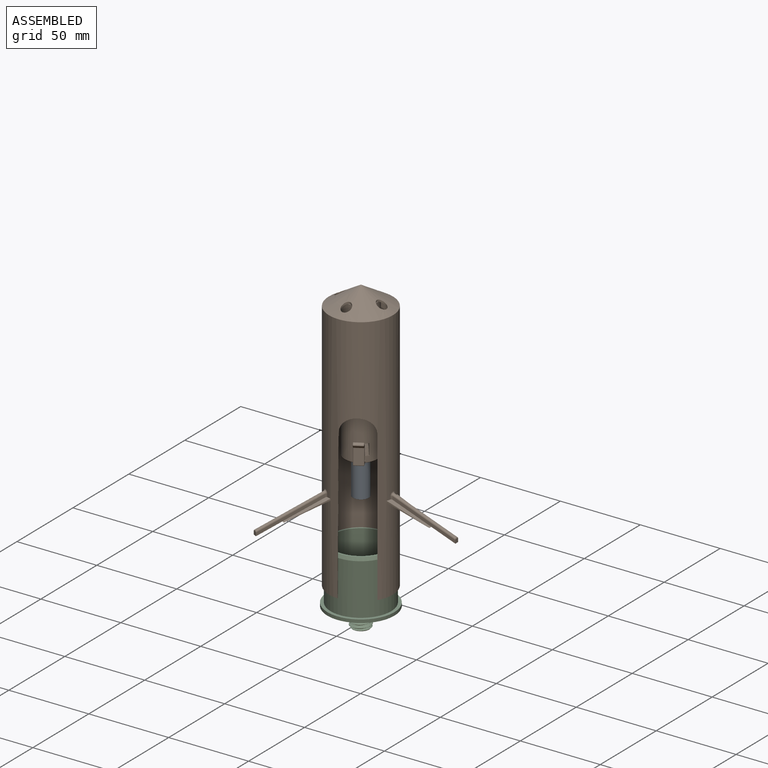
[diagram: assembled view]
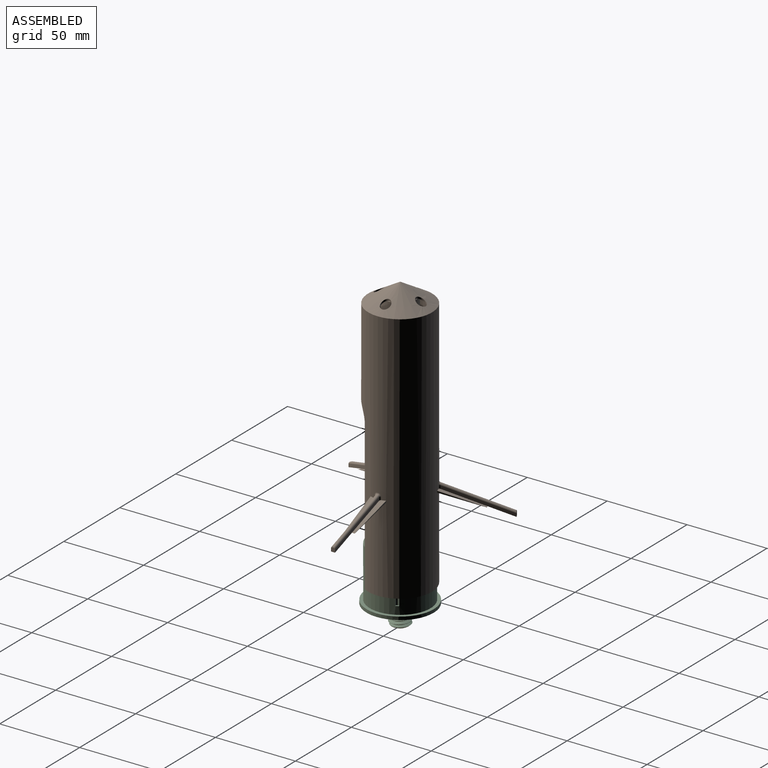
[diagram: assembled view, second angle]
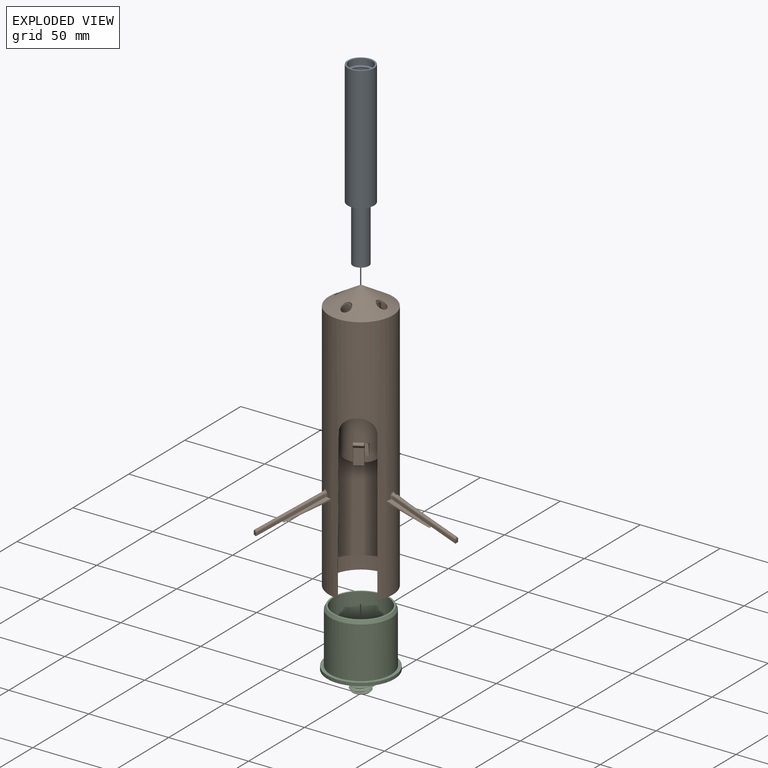
[diagram: exploded view]
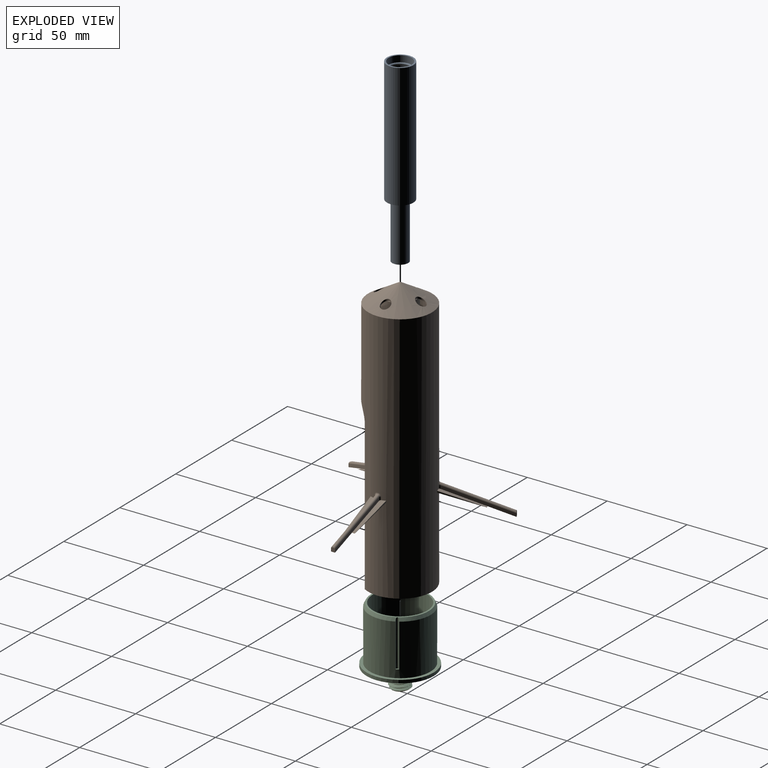
[diagram: exploded view, second angle]
ASSEMBLY  parts=3 mates=3
PART A: 35 faces, bbox 16.8x16.8x112.8 mm
  f0: plane 10x1.3mm, normal (-0.87,0.5,0), area 7.5mm2, adj f2,f20,f34
  f1: plane 0.87x0.5mm, normal (0,0,1), area 0mm2, adj f20,f34
  f2: plane 8x7.97mm, normal (0,0,1), area 45.7mm2, adj f0,f20,f25,f26,f28,f29,f30,f31
  f3: plane 10x10mm, normal (0,0,-1), area 78.5mm2, adj f4
  f4: cylinder r=5mm len=31.6mm, axis (0,0,1), area 992.7mm2, adj f3,f5
  f5: plane 14.5x14.5mm, normal (0,0,-1), area 84.8mm2, adj f4,f6,f21,f22,f23,f24
  f6: cylinder r=7.25mm len=58.05mm, axis (0,0,1), area 2644.4mm2, adj f5,f7
  f7: torus R=7.25mm, axis (0,0,1), area 100.3mm2, adj f6,f8
  f8: cylinder r=7.25mm len=14.5mm, axis (0,0,1), area 125.3mm2, adj f7,f9
  f9: torus R=7.25mm, axis (0,0,1), area 100.3mm2, adj f8,f10
  f10: cylinder r=7.25mm len=14.5mm, axis (0,0,1), area 125.3mm2, adj f9,f11
  f11: torus R=7.25mm, axis (0,0,1), area 100.3mm2, adj f10,f12
  f12: cylinder r=7.25mm len=14.5mm, axis (0,0,1), area 125.3mm2, adj f11,f13
  f13: torus R=7.25mm, axis (0,0,1), area 100.3mm2, adj f12,f14
  f14: cylinder r=7.25mm len=14.5mm, axis (0,0,1), area 182.2mm2, adj f13,f15
  f15: plane 16.5x16.5mm, normal (0,0,-1), area 48.7mm2, adj f14,f16
  f16: cylinder r=8.25mm len=77.8mm, axis (0,0,1), area 4032.9mm2, adj f15,f17
  f17: plane 16.5x16.5mm, normal (0,0,1), area 133.5mm2, adj f16,f18,f21,f22,f23,f24
  f18: cylinder r=5mm len=35mm, axis (0,0,1), area 1099.6mm2, adj f17,f19
  f19: plane 10x10mm, normal (0,0,1), area 28.3mm2, adj f18,f20
  f20: cylinder r=4mm len=67.85mm, axis (0,0,1), area 1675.2mm2, adj f0,f1,f2,f19,f25,f26,f27,f29
  f21: cylinder r=0.38mm len=1.5mm, axis (0,0,1), area 3.5mm2, adj f5,f17
  f22: cylinder r=0.38mm len=1.5mm, axis (0,0,1), area 3.5mm2, adj f5,f17
  f23: cylinder r=0.38mm len=1.5mm, axis (0,0,1), area 3.5mm2, adj f5,f17
  f24: cylinder r=0.38mm len=1.5mm, axis (0,0,1), area 3.5mm2, adj f5,f17
  f25: plane 10x1.5mm, normal (0,1,0), area 7.5mm2, adj f2,f20,f28
  f26: plane 10x1.5mm, normal (0,-1,0), area 7.5mm2, adj f2,f20,f28
  f27: plane 1x0.03mm, normal (0,0,1), area 0mm2, adj f20,f28
  f28: plane 10x1.5mm, normal (0.99,0,0.15), area 10.1mm2, adj f2,f25,f26,f27
  f29: plane 10x1.3mm, normal (0.87,-0.5,0), area 7.5mm2, adj f2,f20,f34
  f30: plane 10x1.3mm, normal (-0.87,-0.5,0), area 7.5mm2, adj f2,f20,f33
  f31: plane 10x1.3mm, normal (0.87,0.5,0), area 7.5mm2, adj f2,f20,f33
  f32: plane 0.87x0.5mm, normal (0,0,1), area 0mm2, adj f20,f33
  f33: plane 10x1.8mm, normal (-0.49,0.86,0.15), area 10.1mm2, adj f2,f30,f31,f32
  f34: plane 10x1.8mm, normal (-0.49,-0.86,0.15), area 10.1mm2, adj f0,f1,f2,f29
PART B: 151 faces, bbox 91.5x105.4x170.1 mm
  f0: cylinder r=10.25mm len=88.47mm, axis (0,0,-1), area 5575mm2, adj f3,f31,f32,f33,f38,f39,f40,f41
  f1: sphere r=1mm, area 6.2mm2, adj f2
  f2: cylinder r=19mm len=157.43mm, axis (0,0,1), area 16629.8mm2, adj f1,f3,f5,f73,f74,f75,f84
  f3: cone r=0mm half-angle=59deg, axis (0,0,-1), area 807.4mm2, adj f0,f2,f77,f79,f81,f83
  f4: cylinder r=20mm len=158mm, axis (0,0,1), area 17635.2mm2, adj f5,f6,f8,f9,f10,f11,f17,f19
  f5: plane 40x39.99mm, normal (0,0,-1), area 100.9mm2, adj f2,f4,f73,f75
  f6: plane 8.3x4.79mm, normal (-0.17,-0.3,0.94), area 4mm2, adj f4,f7
  f7: plane 26x19.51mm, normal (0.15,0.27,-0.95), area 209mm2, adj f6,f8,f9,f10,f11,f12
  f8: plane 23.93x13.71mm, normal (-0.17,-0.3,0.94), area 70.8mm2, adj f4,f7,f10,f14,f134
  f9: plane 21.21x14.34mm, normal (0.83,-0.55,-0.02), area 13.6mm2, adj f4,f7,f11
  f10: plane 23.02x11.21mm, normal (-0.9,0.44,-0.02), area 13.6mm2, adj f4,f7,f8
  f11: plane 22.25x15.89mm, normal (-0.17,-0.3,0.94), area 70.8mm2, adj f4,f7,f9,f15,f127
  f12: plane 14.29x9.7mm, normal (0.17,0.3,-0.94), area 40.1mm2, adj f7,f14,f15,f16
  f13: plane 33.75x19.78mm, normal (-0.17,-0.3,0.94), area 20.6mm2, adj f128,f130,f131,f132
  f14: plane 33.88x19.56mm, normal (-0.87,0.5,0), area 75.7mm2, adj f8,f12,f16,f132,f134
  f15: plane 33.88x19.56mm, normal (0.87,-0.5,0), area 75.7mm2, adj f11,f12,f16,f127,f128
  f16: plane 2.3x2.17mm, normal (-0.5,-0.87,0), area 5.7mm2, adj f12,f14,f15,f128,f130,f132
  f17: plane 8.3x4.79mm, normal (-0.17,0.3,0.94), area 4mm2, adj f4,f18
  f18: plane 26x19.51mm, normal (0.15,-0.27,-0.95), area 209mm2, adj f17,f19,f20,f21,f22,f23
  f19: plane 22.25x15.89mm, normal (-0.17,0.3,0.94), area 70.8mm2, adj f4,f18,f21,f25,f142
  f20: plane 23.02x11.21mm, normal (-0.9,-0.44,-0.02), area 13.6mm2, adj f4,f18,f22
  f21: plane 21.21x14.34mm, normal (0.83,0.55,-0.02), area 13.6mm2, adj f4,f18,f19
  f22: plane 23.93x13.71mm, normal (-0.17,0.3,0.94), area 70.8mm2, adj f4,f18,f20,f26,f135
  f23: plane 14.29x9.7mm, normal (0.17,-0.3,-0.94), area 40.1mm2, adj f18,f25,f26,f27
  f24: plane 33.75x19.78mm, normal (-0.17,0.3,0.94), area 20.6mm2, adj f136,f138,f139,f140
  f25: plane 33.88x19.56mm, normal (0.87,0.5,0), area 75.7mm2, adj f19,f23,f27,f140,f142
  f26: plane 33.88x19.56mm, normal (-0.87,-0.5,0), area 75.7mm2, adj f22,f23,f27,f135,f136
  f27: plane 2.3x2.17mm, normal (-0.5,0.87,0), area 5.7mm2, adj f23,f25,f26,f136,f138,f140
  f28: plane 39.12x16.17mm, normal (0,1,0), area 75.7mm2, adj f30,f66,f70,f143,f144
  f29: plane 39.12x16.17mm, normal (0,-1,0), area 75.7mm2, adj f30,f66,f67,f148,f150
  f30: plane 2.5x2.3mm, normal (1,0,0), area 5.7mm2, adj f28,f29,f66,f144,f146,f148
  f31: plane 1.42x0.96mm, normal (0,0,1), area 0.4mm2, adj f0,f35,f39,f62
  f32: plane 1.5x0.25mm, normal (0,0,1), area 0.4mm2, adj f0,f35,f43,f57
  f33: plane 1.42x0.95mm, normal (0,0,1), area 0.4mm2, adj f0,f35,f46,f52
  f34: cone r=0mm half-angle=59deg, axis (0,0,-1), area 1333.4mm2, adj f4,f77,f79,f81,f83
  f35: cylinder r=8.75mm len=89.87mm, axis (0,0,-1), area 4843.4mm2, adj f31,f32,f33,f36,f37,f38,f39,f40
  f36: plane 22.44x19.5mm, normal (0,0,-1), area 76.2mm2, adj f35,f103,f111,f112,f113,f117,f118
  f37: cone r=0mm half-angle=59deg, axis (0,0,-1), area 280.5mm2, adj f35
  f38: plane 7.01x1.31mm, normal (0.87,0.5,0), area 9.8mm2, adj f0,f35,f40,f41,f60,f61,f64
  f39: plane 7.01x1.31mm, normal (-0.5,-0.87,0), area 9.9mm2, adj f0,f31,f35,f40,f60,f61,f62
  f40: plane 4.5x4.5mm, normal (0,0,-1), area 7.5mm2, adj f0,f35,f38,f39
  f41: plane 1.41x0.94mm, normal (0,0,1), area 0.3mm2, adj f0,f35,f38,f64
  f42: plane 7.01x1.31mm, normal (-0.87,0.5,0), area 9.8mm2, adj f0,f35,f44,f45,f55,f56,f59
  f43: plane 7.01x1.51mm, normal (1,0,0), area 9.9mm2, adj f0,f32,f35,f44,f55,f56,f57
  f44: plane 5.13x2.67mm, normal (0,0,-1), area 7.5mm2, adj f0,f35,f42,f43
  f45: plane 1.41x0.94mm, normal (0,0,1), area 0.3mm2, adj f0,f35,f42,f59
  f46: plane 7.01x1.31mm, normal (-0.5,0.87,0), area 9.9mm2, adj f0,f33,f35,f48,f50,f51,f52
  f47: plane 7.01x1.51mm, normal (0,-1,0), area 9.8mm2, adj f0,f35,f48,f49,f50,f51,f54
  f48: plane 5.13x2.67mm, normal (0,0,-1), area 7.5mm2, adj f0,f35,f46,f47
  f49: plane 1.5x0.22mm, normal (0,0,1), area 0.3mm2, adj f0,f35,f47,f54
  f50: bspline ~6.38x5.08mm, area 31.7mm2, adj f0,f46,f47,f51,f52,f54
  f51: plane 4.69x2.52mm, normal (0.23,0.06,0.97), area 6.8mm2, adj f35,f46,f47,f50,f52,f53,f54
  f52: bspline ~6.29x2.75mm, area 8.8mm2, adj f33,f35,f46,f50,f51,f53
  f53: bspline ~6.02x4.33mm, area 25.5mm2, adj f35,f51,f52,f54
  f54: bspline ~6.29x2.94mm, area 8.7mm2, adj f35,f47,f49,f50,f51,f53
  f55: bspline ~6.36x5.1mm, area 31.7mm2, adj f0,f42,f43,f56,f57,f59
  f56: plane 4.69x2.52mm, normal (-0.06,-0.23,0.97), area 6.8mm2, adj f35,f42,f43,f55,f57,f58,f59
  f57: bspline ~6.29x2.94mm, area 8.8mm2, adj f32,f35,f43,f55,f56,f58
  f58: bspline ~6x4.35mm, area 25.5mm2, adj f35,f56,f57,f59
  f59: bspline ~6.29x2.74mm, area 8.7mm2, adj f35,f42,f45,f55,f56,f58
  f60: bspline ~6.36x4.52mm, area 31.7mm2, adj f0,f38,f39,f61,f62,f64
  f61: plane 4.15x4.15mm, normal (-0.17,0.17,0.97), area 6.8mm2, adj f35,f38,f39,f60,f62,f63,f64
  f62: bspline ~6.29x2.34mm, area 8.8mm2, adj f31,f35,f39,f60,f61,f63
  f63: bspline ~6x3.95mm, area 25.5mm2, adj f35,f61,f62,f64
  f64: bspline ~6.29x2.36mm, area 8.7mm2, adj f35,f38,f41,f60,f61,f63
  f65: plane 38.69x14.08mm, normal (0.34,0,0.94), area 20.6mm2, adj f144,f146,f147,f148
  f66: plane 15.06x5.48mm, normal (-0.34,0,-0.94), area 40.1mm2, adj f28,f29,f30,f72
  f67: plane 25.56x9.33mm, normal (0.34,0,0.94), area 70.8mm2, adj f4,f29,f69,f72,f150
  f68: plane 25.53x9.29mm, normal (0.06,1,-0.02), area 13.6mm2, adj f4,f70,f72
  f69: plane 25.53x9.29mm, normal (0.06,-1,-0.02), area 13.6mm2, adj f4,f67,f72
  f70: plane 25.56x9.33mm, normal (0.34,0,0.94), area 70.8mm2, adj f4,f28,f68,f72,f143
  f71: plane 9.69x0.69mm, normal (0.34,0,0.94), area 4mm2, adj f4,f72
  f72: plane 25.52x9.59mm, normal (-0.31,0,-0.95), area 209mm2, adj f66,f67,f68,f69,f70,f71
  f73: plane 93.02x1.01mm, normal (-0.87,-0.5,0), area 108.3mm2, adj f2,f4,f5,f74
  f74: cylinder r=10mm len=19.24mm, axis (0.5,-0.87,0), area 34.3mm2, adj f2,f4,f73,f75
  f75: plane 93.53x1.18mm, normal (0.87,0.5,-0.01), area 110mm2, adj f2,f4,f5,f74
  f76: cone r=0mm half-angle=59deg, axis (0,0,-1), area 0.4mm2, adj f0,f77
  f77: cylinder r=3mm len=6mm, axis (0,0,1), area 22mm2, adj f3,f34,f76
  f78: cone r=0mm half-angle=59deg, axis (0,0,-1), area 0.4mm2, adj f0,f79
  f79: cylinder r=3mm len=6mm, axis (0,0,1), area 22mm2, adj f3,f34,f78
  f80: cone r=0mm half-angle=59deg, axis (0,0,-1), area 0.4mm2, adj f0,f81
  f81: cylinder r=3mm len=6mm, axis (0,0,1), area 22mm2, adj f3,f34,f80
  f82: cone r=0mm half-angle=59deg, axis (0,0,-1), area 0.4mm2, adj f0,f83
  f83: cylinder r=3mm len=6mm, axis (0,0,1), area 22mm2, adj f3,f34,f82
  f84: sphere r=1mm, area 6.2mm2, adj f2
  f85: plane 12.29x3.75mm, normal (0.87,0.5,0), area 13.5mm2, adj f98,f99,f104,f109,f113,f114,f119,f122
  f86: plane 12.29x3.75mm, normal (-0.87,-0.5,0), area 13.5mm2, adj f96,f97,f102,f106,f110,f111,f116,f120
  f87: plane 4.71x3.15mm, normal (0,0,1), area 2.8mm2, adj f115,f120,f123,f126
  f88: plane 8.74x4.68mm, normal (-0.5,0.86,-0.08), area 43.8mm2, adj f89,f110,f114,f115
  f89: plane 5.56x4.63mm, normal (-0.35,0.6,0.72), area 17.1mm2, adj f88,f100,f106,f109
  f90: plane 4.68x3.1mm, normal (0.36,-0.62,0.7), area 5mm2, adj f93,f96,f99,f100
  f91: plane 5.23x4.06mm, normal (0.35,-0.6,-0.72), area 12.5mm2, adj f92,f93,f97,f98
  f92: plane 9.44x4.66mm, normal (0.5,-0.86,0.07), area 47.3mm2, adj f91,f102,f103,f104
  f93: cylinder r=0.5mm len=4.41mm, axis (-0.87,-0.5,0), area 3.9mm2, adj f90,f91,f94,f95
  f94: sphere r=0.5mm, area 0.4mm2, adj f93,f96,f97
  f95: sphere r=0.5mm, area 0.4mm2, adj f93,f98,f99
  f96: cylinder r=0.5mm len=1.07mm, axis (0.35,-0.6,-0.72), area 0.8mm2, adj f86,f90,f94,f101
  f97: cylinder r=0.5mm len=2.26mm, axis (-0.36,0.62,-0.7), area 2.1mm2, adj f86,f91,f94,f102
  f98: cylinder r=0.5mm len=2.26mm, axis (0.36,-0.62,0.7), area 2.1mm2, adj f85,f91,f95,f104
  f99: cylinder r=0.5mm len=1.16mm, axis (-0.35,0.6,0.72), area 0.8mm2, adj f85,f90,f95,f105
  f100: cylinder r=0.5mm len=4.68mm, axis (-0.87,-0.5,0), area 3.9mm2, adj f89,f90,f101,f105
  f101: sphere r=0.5mm, area 0.4mm2, adj f96,f100,f106
  f102: cylinder r=0.5mm len=9.71mm, axis (0.04,-0.06,-1), area 7.5mm2, adj f86,f92,f97,f107
  f103: cylinder r=0.5mm len=4.58mm, axis (0.87,0.5,0), area 4.1mm2, adj f36,f92,f107,f108
  f104: cylinder r=0.5mm len=9.71mm, axis (-0.04,0.06,1), area 7.5mm2, adj f85,f92,f98,f108
  f105: sphere r=0.5mm, area 0.4mm2, adj f99,f100,f109
  f106: cylinder r=0.5mm len=2.73mm, axis (0.36,-0.62,0.7), area 2.6mm2, adj f86,f89,f101,f110
  f107: sphere r=0.5mm, area 0.4mm2, adj f102,f103,f111
  f108: sphere r=0.5mm, area 0.4mm2, adj f103,f104,f113
  f109: cylinder r=0.5mm len=2.73mm, axis (-0.36,0.62,-0.7), area 2.6mm2, adj f85,f89,f105,f114
  f110: cylinder r=0.5mm len=8.78mm, axis (-0.04,0.07,1), area 6.8mm2, adj f86,f88,f106,f116
  f111: cylinder r=0.5mm len=2.89mm, axis (0.5,-0.87,0), area 2.4mm2, adj f36,f86,f107,f117
  f112: torus R=9.75mm, axis (0,0,1), area 44.4mm2, adj f0,f36,f117,f118
  f113: cylinder r=0.5mm len=2.89mm, axis (-0.5,0.87,0), area 2.4mm2, adj f36,f85,f108,f118
  f114: cylinder r=0.5mm len=8.78mm, axis (0.04,-0.07,-1), area 6.8mm2, adj f85,f88,f109,f119
  f115: cylinder r=0.5mm len=4.58mm, axis (0.87,0.5,0), area 4.1mm2, adj f87,f88,f116,f119
  f116: torus R=1mm, axis (0.87,0.5,0), area 0.9mm2, adj f86,f110,f115,f120
  f117: torus R=1mm, axis (0,0,1), area 0.7mm2, adj f36,f111,f112,f121
  f118: torus R=1mm, axis (0,0,1), area 0.7mm2, adj f36,f112,f113,f122
  f119: torus R=1mm, axis (0.87,0.5,0), area 0.9mm2, adj f85,f114,f115,f123
  f120: cylinder r=0.5mm len=1.15mm, axis (0.5,-0.87,0), area 0.7mm2, adj f86,f87,f116,f124
  f121: cylinder r=0.5mm len=0.53mm, axis (0,0,-1), area 0.3mm2, adj f0,f86,f117,f124
  f122: cylinder r=0.5mm len=0.58mm, axis (0,0,-1), area 0.3mm2, adj f0,f85,f118,f125
  f123: cylinder r=0.5mm len=1.15mm, axis (-0.5,0.87,0), area 0.7mm2, adj f85,f87,f119,f125
  f124: bspline ~1.21x1.19mm, area 0.8mm2, adj f0,f120,f121,f126
  f125: bspline ~1.2x1.18mm, area 0.8mm2, adj f0,f122,f123,f126
  f126: torus R=10.75mm, axis (0,0,1), area 3.8mm2, adj f0,f87,f124,f125
  f127: cylinder r=1mm len=1.94mm, axis (0,0,1), area 2.5mm2, adj f4,f11,f15,f129
  f128: cylinder r=1mm len=34.65mm, axis (0.47,0.81,0.34), area 65.4mm2, adj f13,f15,f16,f129,f130
  f129: bspline ~2.36x2.22mm, area 3mm2, adj f4,f127,f128,f131
  f130: cylinder r=1mm len=2.39mm, axis (0.87,-0.5,0), area 1.9mm2, adj f13,f16,f128,f132
  f131: bspline ~0.94x0.81mm, area 0.6mm2, adj f4,f13,f129,f133
  f132: cylinder r=1mm len=35.17mm, axis (-0.47,-0.81,-0.34), area 65.4mm2, adj f13,f14,f16,f130,f133
  f133: bspline ~2.22x1.92mm, area 3mm2, adj f4,f131,f132,f134
  f134: cylinder r=1mm len=1.94mm, axis (0,0,1), area 2.5mm2, adj f4,f8,f14,f133
  f135: cylinder r=1mm len=1.94mm, axis (0,0,1), area 2.5mm2, adj f4,f22,f26,f137
  f136: cylinder r=1mm len=35.17mm, axis (0.47,-0.81,0.34), area 65.4mm2, adj f24,f26,f27,f137,f138
  f137: bspline ~2.36x1.93mm, area 3mm2, adj f4,f135,f136,f139
  f138: cylinder r=1mm len=2.39mm, axis (-0.87,-0.5,0), area 1.9mm2, adj f24,f27,f136,f140
  f139: bspline ~0.94x0.81mm, area 0.6mm2, adj f4,f24,f137,f141
  f140: cylinder r=1mm len=34.65mm, axis (-0.47,0.81,-0.34), area 65.4mm2, adj f24,f25,f27,f138,f141
  f141: bspline ~2.22x2.2mm, area 3mm2, adj f4,f139,f140,f142
  f142: cylinder r=1mm len=1.94mm, axis (0,0,1), area 2.5mm2, adj f4,f19,f25,f141
  f143: cylinder r=1mm len=1.94mm, axis (0,0,1), area 2.5mm2, adj f4,f28,f70,f145
  f144: cylinder r=1mm len=40.03mm, axis (-0.94,0,0.34), area 65.4mm2, adj f28,f30,f65,f145,f146
  f145: bspline ~2.36x2.32mm, area 3mm2, adj f4,f143,f144,f147
  f146: cylinder r=1mm len=2.38mm, axis (0,1,0), area 1.9mm2, adj f30,f65,f144,f148
  f147: bspline ~0.94x0.66mm, area 0.6mm2, adj f4,f65,f145,f149
  f148: cylinder r=1mm len=40.03mm, axis (0.94,0,-0.34), area 65.4mm2, adj f29,f30,f65,f146,f149
  f149: bspline ~2.28x2.22mm, area 3mm2, adj f4,f147,f148,f150
  f150: cylinder r=1mm len=1.94mm, axis (0,0,1), area 2.5mm2, adj f4,f29,f67,f149
PART C: 19 faces, bbox 42.3x42.3x49.5 mm
  f0: cylinder r=1mm len=29mm, axis (0,0,-1), area 86.5mm2, adj f1,f7,f17,f18
  f1: plane 2x1mm, normal (0,0,-1), area 1.6mm2, adj f0,f7
  f2: cylinder r=6.25mm len=12.5mm, axis (0,0,-1), area 54mm2, adj f3,f11,f12,f13,f14
  f3: plane 42x42mm, normal (0,0,1), area 1262.7mm2, adj f2,f9
  f4: plane 34x34mm, normal (0,0,-1), area 907.9mm2, adj f5
  f5: cylinder r=17mm len=34mm, axis (0,0,1), area 3418.1mm2, adj f4,f6
  f6: plane 36x36mm, normal (0,0,-1), area 110mm2, adj f5,f17,f18
  f7: cylinder r=19mm len=38mm, axis (0,0,1), area 3712.2mm2, adj f0,f1,f8,f15,f16,f17,f18
  f8: plane 42x42mm, normal (0,0,-1), area 251.3mm2, adj f7,f9
  f9: cylinder r=21mm len=42mm, axis (0,0,1), area 263.9mm2, adj f3,f8
  f10: plane 10.76x10.23mm, normal (0,0,1), area 82.8mm2, adj f11,f13,f14
  f11: cone r=5.25mm half-angle=45deg, axis (0,0,-1), area 16.9mm2, adj f2,f10,f13,f14
  f12: plane 1.9x1.65mm, normal (0,1,0), area 1.6mm2, adj f2,f13,f14
  f13: bspline ~14.43x12.62mm, area 363.5mm2, adj f2,f10,f11,f12,f14
  f14: bspline ~14.43x12.5mm, area 331.6mm2, adj f2,f10,f11,f12,f13
  f15: cylinder r=1mm len=29mm, axis (0,0,-1), area 86.5mm2, adj f7,f16,f17,f18
  f16: plane 2x1mm, normal (0,0,-1), area 1.6mm2, adj f7,f15
  f17: cone r=19mm half-angle=26.6deg, axis (0,0,1), area 126.5mm2, adj f0,f6,f7,f15
  f18: cone r=19mm half-angle=26.6deg, axis (0,0,1), area 126.5mm2, adj f0,f6,f7,f15
PLACE A rot(axis=(0,1,0),180deg) t=(2.26,-2.85,40.55)mm
PLACE B t=(2.26,-2.85,-14.59)mm fixed
PLACE C rot(axis=(0.87,-0.5,0),180deg) t=(2.26,-2.85,-72.29)mm
MATE fastened A.f4 <-> B.f2  axis (0,0,1) through (2.26,-2.85,85.25)mm
MATE cylindrical C.f5 <-> B.f2  axis (0,0,-1) through (2.26,-2.85,-55.96)mm
MATE cylindrical A.f4 <-> B.f35  axis (0,0,-1) through (2.26,-2.85,46.35)mm
